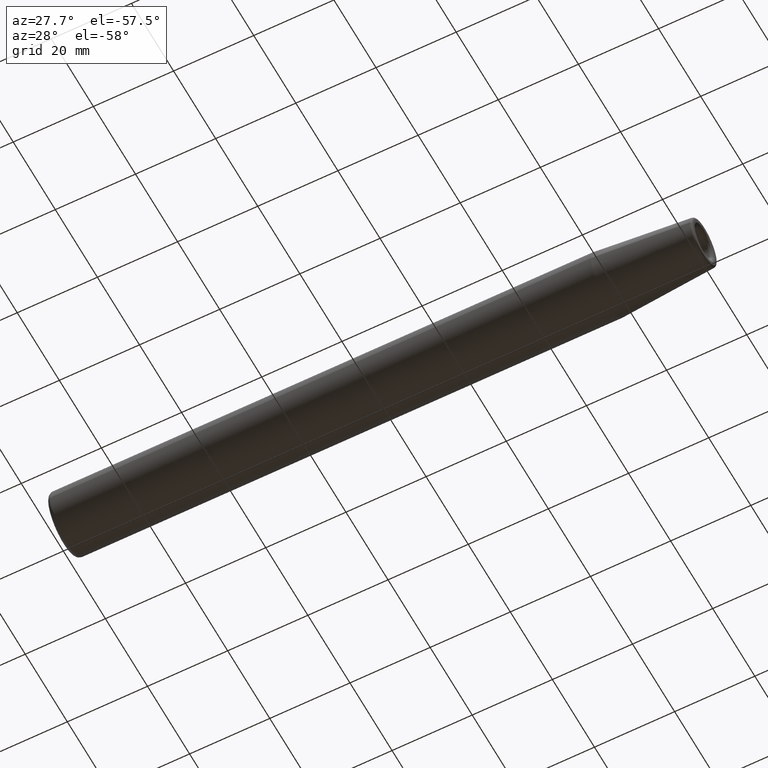
[diagram: clean part render]
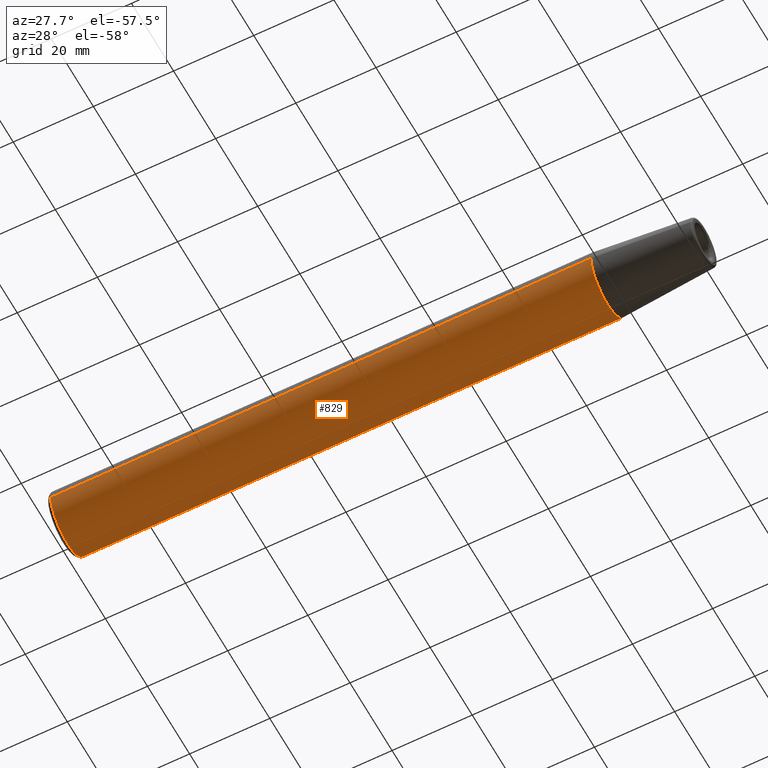
[diagram: same view with one face highlighted and labeled with its STEP entity id]
A machine part, auxiliary view. The second image highlights one B-rep face of the part: STEP entity #829.
In plain terms, the highlighted cylindrical surface (edge-blend (fillet) strip) has radius 7.9375 mm, axis along (1, 0, 0).
Its self-contained STEP definition (entity closure, byte-faithful):
#17=CARTESIAN_POINT('',(1.E0,0.E0,0.E0));
#18=DIRECTION('',(-1.E0,0.E0,0.E0));
#19=DIRECTION('',(0.E0,1.E0,0.E0));
#20=AXIS2_PLACEMENT_3D('',#17,#18,#19);
#289=DIRECTION('',(-1.E0,0.E0,0.E0));
#290=VECTOR('',#289,1.347787972217E2);
#291=CARTESIAN_POINT('',(1.357787972217E2,7.9375E0,0.E0));
#292=LINE('',#291,#290);
#293=DIRECTION('',(-1.E0,0.E0,0.E0));
#294=VECTOR('',#293,1.347787972217E2);
#295=CARTESIAN_POINT('',(1.357787972217E2,-7.9375E0,0.E0));
#296=LINE('',#295,#294);
#297=CARTESIAN_POINT('',(1.357787972217E2,0.E0,0.E0));
#298=DIRECTION('',(-1.E0,0.E0,0.E0));
#299=DIRECTION('',(0.E0,1.E0,0.E0));
#300=AXIS2_PLACEMENT_3D('',#297,#298,#299);
#302=CARTESIAN_POINT('',(1.E0,7.9375E0,0.E0));
#304=VERTEX_POINT('',#302);
#336=CARTESIAN_POINT('',(1.357787972217E2,7.9375E0,0.E0));
#337=VERTEX_POINT('',#336);
#338=CARTESIAN_POINT('',(1.E0,-7.9375E0,0.E0));
#340=VERTEX_POINT('',#338);
#372=CARTESIAN_POINT('',(1.357787972217E2,-7.9375E0,0.E0));
#373=VERTEX_POINT('',#372);
#818=CARTESIAN_POINT('',(-8.E0,0.E0,0.E0));
#819=DIRECTION('',(1.E0,0.E0,0.E0));
#820=DIRECTION('',(0.E0,-1.E0,0.E0));
#821=AXIS2_PLACEMENT_3D('',#818,#819,#820);
#822=CYLINDRICAL_SURFACE('',#821,7.9375E0);
#823=ORIENTED_EDGE('',*,*,#809,.T.);
#824=ORIENTED_EDGE('',*,*,#399,.T.);
#825=ORIENTED_EDGE('',*,*,#812,.F.);
#826=ORIENTED_EDGE('',*,*,#783,.F.);
#827=EDGE_LOOP('',(#823,#824,#825,#826));
#828=FACE_OUTER_BOUND('',#827,.F.);
#829=ADVANCED_FACE('',(#828),#822,.T.);
#21=CIRCLE('',#20,7.9375E0);
#301=CIRCLE('',#300,7.9375E0);
#399=EDGE_CURVE('',#304,#340,#21,.T.);
#783=EDGE_CURVE('',#337,#373,#301,.T.);
#809=EDGE_CURVE('',#337,#304,#292,.T.);
#812=EDGE_CURVE('',#373,#340,#296,.T.);